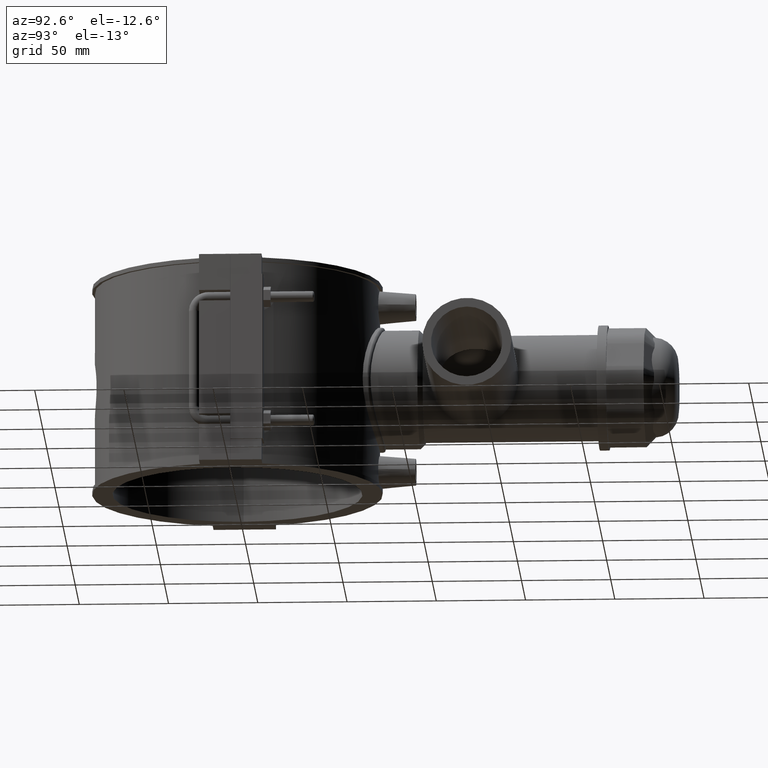
[diagram: clean part render]
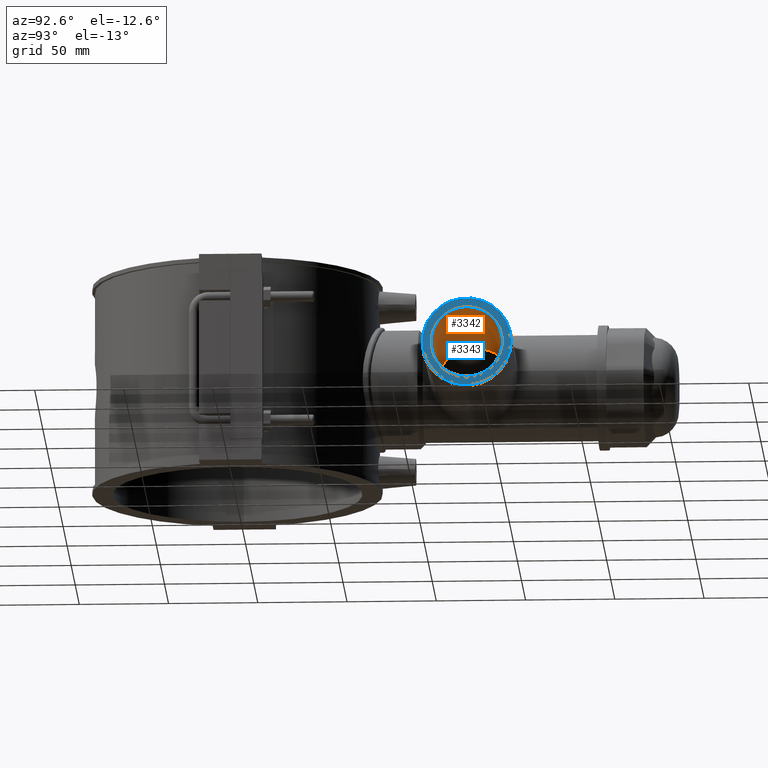
[diagram: same view with the hole feature highlighted: cylindrical wall and planar end face, labeled with their STEP entity ids]
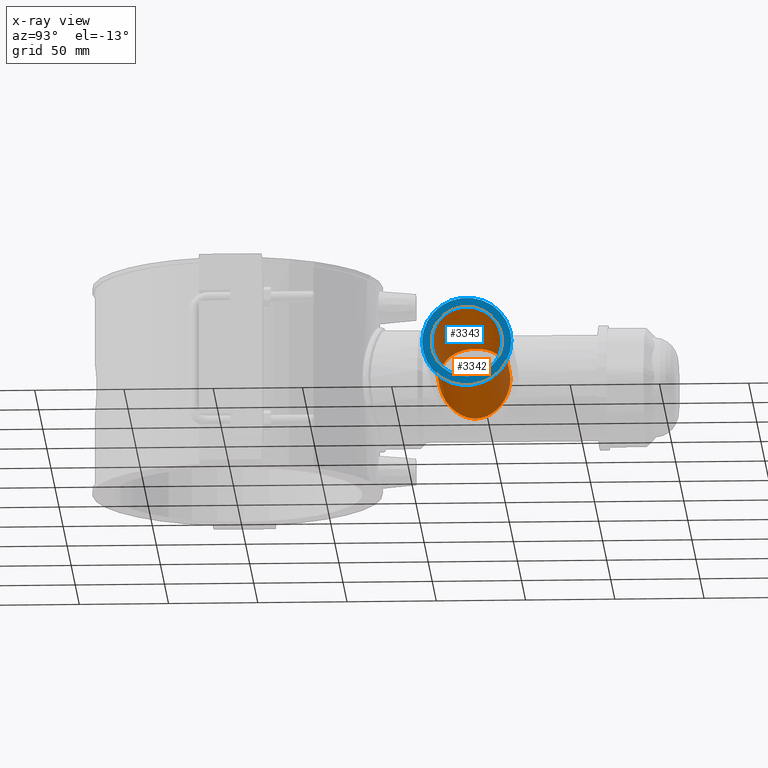
[diagram: x-ray of the same camera — body ghosted, the hole faces saturated]
A machine part, auxiliary view. The highlighted faces form one hole feature of diameter 40 mm: the cylindrical wall (entity #3342, orange) and its adjacent planar end face (entity #3343, blue) — they share a circular edge in the B-rep.
The next image is the same camera in x-ray (body ghosted, the hole faces saturated) — the bore reads through the body.
Wall:
#634=FACE_BOUND('',#1038,.T.);
#688=B_SPLINE_CURVE_WITH_KNOTS('',3,(#4812,#4813,#4814,#4815,#4816,#4817,
#4818,#4819,#4820,#4821,#4822,#4823,#4824,#4825,#4826,#4827,#4828,#4829,
#4830,#4831,#4832,#4833,#4834,#4835,#4836,#4837,#4838,#4839,#4840,#4841,
#4842,#4843,#4844,#4845,#4846,#4847,#4848,#4849,#4850,#4851,#4852,#4853,
#4854,#4855,#4856,#4857,#4858,#4859,#4860,#4861,#4862,#4863,#4864,#4865,
#4866,#4867,#4868,#4869,#4870,#4871,#4872,#4873,#4874,#4875,#4876,#4877),
 .UNSPECIFIED.,.T.,.F.,(4,2,2,2,2,2,2,2,2,2,2,2,2,2,2,2,2,2,2,2,2,2,2,2,
2,2,2,2,2,2,2,2,4),(0.,0.413072097664469,0.826144195328938,1.23921629299341,
1.65228839065788,2.0507291938157,2.44916999697352,2.84761080013134,3.24605160328916,
3.64449240644699,4.04293320960481,4.44137401276263,4.83981481592045,5.25288691358492,
5.66595901124939,6.07903110891386,6.49210320657833,6.9051753042428,7.31824740190726,
7.73131949957173,8.1443915972362,8.54283240039402,8.94127320355184,9.33971400670967,
9.73815480986749,10.1365956130253,10.5350364161831,10.933477219341,11.3319180224988,
11.7449901201632,12.1580622178277,12.5711343154922,12.9842064131567),
 .UNSPECIFIED.);
#777=CYLINDRICAL_SURFACE('',#3554,20.);
#826=FACE_OUTER_BOUND('',#1037,.T.);
#1037=EDGE_LOOP('',(#2230));
#1038=EDGE_LOOP('',(#2231));
#1296=CIRCLE('',#3555,20.);
#1410=VERTEX_POINT('',#4811);
#1415=VERTEX_POINT('',#5019);
#1735=EDGE_CURVE('',#1410,#1410,#688,.T.);
#1740=EDGE_CURVE('',#1415,#1415,#1296,.T.);
#2230=ORIENTED_EDGE('',*,*,#1735,.T.);
#2231=ORIENTED_EDGE('',*,*,#1740,.T.);
#3342=ADVANCED_FACE('',(#826,#634),#777,.F.);
#3554=AXIS2_PLACEMENT_3D('',#5018,#3864,#3865);
#3555=AXIS2_PLACEMENT_3D('',#5020,#3866,#3867);
#3864=DIRECTION('center_axis',(1.,0.,0.));
#3865=DIRECTION('ref_axis',(0.,1.,0.));
#3866=DIRECTION('center_axis',(1.,0.,0.));
#3867=DIRECTION('ref_axis',(0.,0.,-1.));
#4811=CARTESIAN_POINT('',(14.1509716980848,134.,-20.));
#4812=CARTESIAN_POINT('Ctrl Pts',(14.1509716980848,134.,-20.));
#4813=CARTESIAN_POINT('Ctrl Pts',(14.1509716980848,132.623093007785,-20.));
#4814=CARTESIAN_POINT('Ctrl Pts',(14.3575001500268,131.265038550807,-19.8573913601071));
#4815=CARTESIAN_POINT('Ctrl Pts',(15.0793013404482,128.640192645228,-19.3149805110262));
#4816=CARTESIAN_POINT('Ctrl Pts',(15.5905867326269,127.372293702725,-18.9152395318719));
#4817=CARTESIAN_POINT('Ctrl Pts',(16.7568361382935,124.963870036954,-17.8902523628149));
#4818=CARTESIAN_POINT('Ctrl Pts',(17.4113274326998,123.821987122528,-17.2640217307327));
#4819=CARTESIAN_POINT('Ctrl Pts',(18.7282635426713,121.70424959966,-15.8257042296447));
#4820=CARTESIAN_POINT('Ctrl Pts',(19.3906313822621,120.72875121872,-15.0130224661819));
#4821=CARTESIAN_POINT('Ctrl Pts',(20.6000610698633,119.017824937809,-13.3020961852705));
#4822=CARTESIAN_POINT('Ctrl Pts',(21.1956742964763,118.213056702559,-12.3454412897458));
#4823=CARTESIAN_POINT('Ctrl Pts',(22.292499894998,116.768444020399,-10.2328382171603));
#4824=CARTESIAN_POINT('Ctrl Pts',(22.7933304400087,116.128582252533,-9.07670366801608));
#4825=CARTESIAN_POINT('Ctrl Pts',(23.6222368198517,115.08276618133,-6.62664361673192));
#4826=CARTESIAN_POINT('Ctrl Pts',(23.9509000880607,114.675902543662,-5.32983515935106));
#4827=CARTESIAN_POINT('Ctrl Pts',(24.3898956007476,114.134398199683,-2.68062501300337));
#4828=CARTESIAN_POINT('Ctrl Pts',(24.5,114.,-1.32813601052608));
#4829=CARTESIAN_POINT('Ctrl Pts',(24.5,114.,1.32813601052607));
#4830=CARTESIAN_POINT('Ctrl Pts',(24.3898956007476,114.134398199683,2.68062501300336));
#4831=CARTESIAN_POINT('Ctrl Pts',(23.9509000880608,114.675902543662,5.32983515935104));
#4832=CARTESIAN_POINT('Ctrl Pts',(23.6222368198517,115.08276618133,6.6266436167319));
#4833=CARTESIAN_POINT('Ctrl Pts',(22.7933304400088,116.128582252533,9.07670366801606));
#4834=CARTESIAN_POINT('Ctrl Pts',(22.2924998949981,116.768444020399,10.2328382171603));
#4835=CARTESIAN_POINT('Ctrl Pts',(21.1956742964764,118.213056702559,12.3454412897458));
#4836=CARTESIAN_POINT('Ctrl Pts',(20.6000610698633,119.017824937809,13.3020961852705));
#4837=CARTESIAN_POINT('Ctrl Pts',(19.3906313822622,120.72875121872,15.0130224661819));
#4838=CARTESIAN_POINT('Ctrl Pts',(18.7282635426714,121.70424959966,15.8257042296446));
#4839=CARTESIAN_POINT('Ctrl Pts',(17.4113274326999,123.821987122528,17.2640217307326));
#4840=CARTESIAN_POINT('Ctrl Pts',(16.7568361382936,124.963870036954,17.8902523628149));
#4841=CARTESIAN_POINT('Ctrl Pts',(15.590586732627,127.372293702725,18.9152395318719));
#4842=CARTESIAN_POINT('Ctrl Pts',(15.0793013404483,128.640192645228,19.3149805110262));
#4843=CARTESIAN_POINT('Ctrl Pts',(14.3575001500269,131.265038550807,19.8573913601071));
#4844=CARTESIAN_POINT('Ctrl Pts',(14.1509716980849,132.623093007785,20.));
#4845=CARTESIAN_POINT('Ctrl Pts',(14.1509716980849,135.376906992215,20.));
#4846=CARTESIAN_POINT('Ctrl Pts',(14.3575001500269,136.734961449193,19.8573913601071));
#4847=CARTESIAN_POINT('Ctrl Pts',(15.0793013404483,139.359807354772,19.3149805110262));
#4848=CARTESIAN_POINT('Ctrl Pts',(15.590586732627,140.627706297275,18.9152395318719));
#4849=CARTESIAN_POINT('Ctrl Pts',(16.7568361382936,143.036129963046,17.8902523628149));
#4850=CARTESIAN_POINT('Ctrl Pts',(17.4113274326998,144.178012877472,17.2640217307327));
#4851=CARTESIAN_POINT('Ctrl Pts',(18.7282635426714,146.29575040034,15.8257042296446));
#4852=CARTESIAN_POINT('Ctrl Pts',(19.3906313822622,147.27124878128,15.0130224661819));
#4853=CARTESIAN_POINT('Ctrl Pts',(20.6000610698633,148.982175062191,13.3020961852705));
#4854=CARTESIAN_POINT('Ctrl Pts',(21.1956742964764,149.786943297441,12.3454412897458));
#4855=CARTESIAN_POINT('Ctrl Pts',(22.2924998949981,151.231555979601,10.2328382171603));
#4856=CARTESIAN_POINT('Ctrl Pts',(22.7933304400088,151.871417747467,9.07670366801606));
#4857=CARTESIAN_POINT('Ctrl Pts',(23.6222368198517,152.91723381867,6.6266436167319));
#4858=CARTESIAN_POINT('Ctrl Pts',(23.9509000880608,153.324097456338,5.32983515935104));
#4859=CARTESIAN_POINT('Ctrl Pts',(24.3898956007477,153.865601800318,2.68062501300336));
#4860=CARTESIAN_POINT('Ctrl Pts',(24.5,154.,1.32813601052607));
#4861=CARTESIAN_POINT('Ctrl Pts',(24.5,154.,-1.32813601052607));
#4862=CARTESIAN_POINT('Ctrl Pts',(24.3898956007476,153.865601800317,-2.68062501300336));
#4863=CARTESIAN_POINT('Ctrl Pts',(23.9509000880607,153.324097456338,-5.32983515935105));
#4864=CARTESIAN_POINT('Ctrl Pts',(23.6222368198517,152.91723381867,-6.62664361673191));
#4865=CARTESIAN_POINT('Ctrl Pts',(22.7933304400087,151.871417747467,-9.07670366801606));
#4866=CARTESIAN_POINT('Ctrl Pts',(22.292499894998,151.231555979601,-10.2328382171603));
#4867=CARTESIAN_POINT('Ctrl Pts',(21.1956742964763,149.786943297441,-12.3454412897458));
#4868=CARTESIAN_POINT('Ctrl Pts',(20.6000610698633,148.982175062191,-13.3020961852705));
#4869=CARTESIAN_POINT('Ctrl Pts',(19.3906313822621,147.27124878128,-15.0130224661819));
#4870=CARTESIAN_POINT('Ctrl Pts',(18.7282635426713,146.29575040034,-15.8257042296446));
#4871=CARTESIAN_POINT('Ctrl Pts',(17.4113274326998,144.178012877472,-17.2640217307327));
#4872=CARTESIAN_POINT('Ctrl Pts',(16.7568361382935,143.036129963046,-17.8902523628149));
#4873=CARTESIAN_POINT('Ctrl Pts',(15.5905867326269,140.627706297275,-18.9152395318719));
#4874=CARTESIAN_POINT('Ctrl Pts',(15.0793013404482,139.359807354772,-19.3149805110262));
#4875=CARTESIAN_POINT('Ctrl Pts',(14.3575001500268,136.734961449193,-19.8573913601071));
#4876=CARTESIAN_POINT('Ctrl Pts',(14.1509716980848,135.376906992215,-20.));
#4877=CARTESIAN_POINT('Ctrl Pts',(14.1509716980848,134.,-20.));
#5018=CARTESIAN_POINT('Origin',(61.5,134.,0.));
#5019=CARTESIAN_POINT('',(123.,134.,-20.));
#5020=CARTESIAN_POINT('Origin',(123.,134.,0.));
End face:
#635=FACE_BOUND('',#1040,.T.);
#827=FACE_OUTER_BOUND('',#1039,.T.);
#1039=EDGE_LOOP('',(#2232));
#1040=EDGE_LOOP('',(#2233));
#1295=CIRCLE('',#3553,25.);
#1296=CIRCLE('',#3555,20.);
#1413=VERTEX_POINT('',#4949);
#1415=VERTEX_POINT('',#5019);
#1738=EDGE_CURVE('',#1413,#1413,#1295,.T.);
#1740=EDGE_CURVE('',#1415,#1415,#1296,.T.);
#2232=ORIENTED_EDGE('',*,*,#1738,.T.);
#2233=ORIENTED_EDGE('',*,*,#1740,.F.);
#3221=PLANE('',#3556);
#3343=ADVANCED_FACE('',(#827,#635),#3221,.T.);
#3553=AXIS2_PLACEMENT_3D('',#4950,#3862,#3863);
#3555=AXIS2_PLACEMENT_3D('',#5020,#3866,#3867);
#3556=AXIS2_PLACEMENT_3D('',#5021,#3868,#3869);
#3862=DIRECTION('center_axis',(1.,0.,0.));
#3863=DIRECTION('ref_axis',(0.,0.,-1.));
#3866=DIRECTION('center_axis',(1.,0.,0.));
#3867=DIRECTION('ref_axis',(0.,0.,-1.));
#3868=DIRECTION('center_axis',(1.,0.,0.));
#3869=DIRECTION('ref_axis',(0.,0.,-1.));
#4949=CARTESIAN_POINT('',(123.,159.,0.));
#4950=CARTESIAN_POINT('Origin',(123.,134.,0.));
#5019=CARTESIAN_POINT('',(123.,134.,-20.));
#5020=CARTESIAN_POINT('Origin',(123.,134.,0.));
#5021=CARTESIAN_POINT('Origin',(123.,154.,0.));